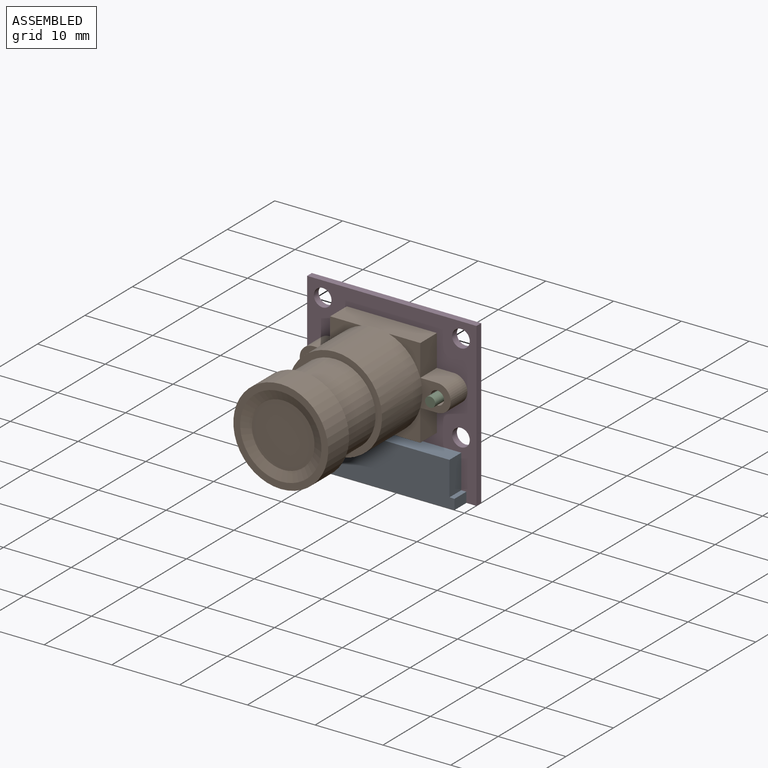
[diagram: assembled view]
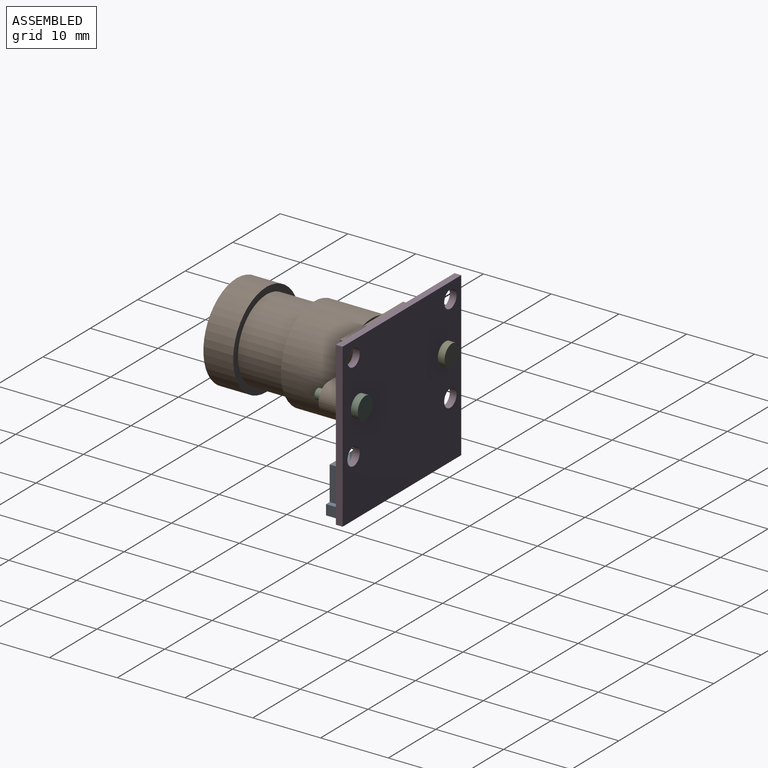
[diagram: assembled view, second angle]
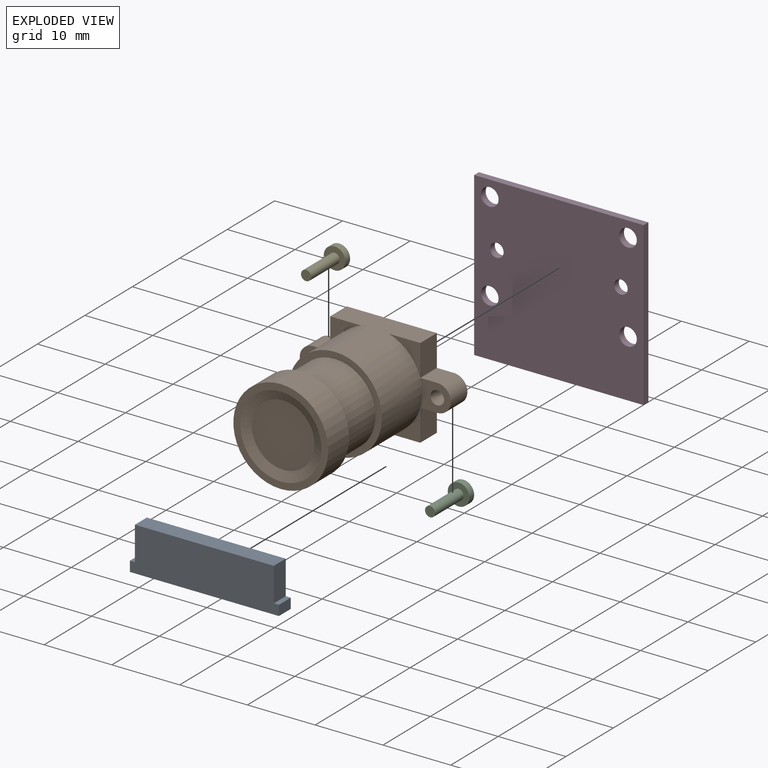
[diagram: exploded view]
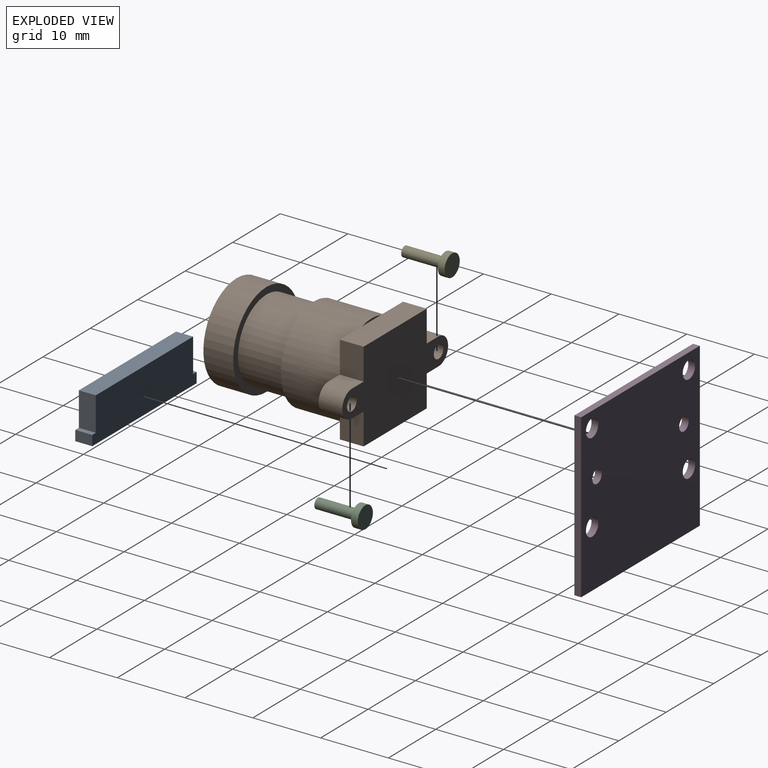
[diagram: exploded view, second angle]
ASSEMBLY  parts=5 mates=5
PART A: 10 faces, bbox 22x2.5x6.5 mm
  f0: plane 2.5x0.75mm, normal (0,0,1), area 1.9mm2, adj f1,f7,f8,f9
  f1: plane 5x2.5mm, normal (1,0,0), area 12.5mm2, adj f0,f2,f8,f9
  f2: plane 20.5x2.5mm, normal (0,0,1), area 51.3mm2, adj f1,f3,f8,f9
  f3: plane 5x2.5mm, normal (-1,0,0), area 12.5mm2, adj f2,f4,f8,f9
  f4: plane 2.5x0.75mm, normal (0,0,1), area 1.9mm2, adj f3,f5,f8,f9
  f5: plane 2.5x1.5mm, normal (-1,0,0), area 3.7mm2, adj f4,f6,f8,f9
  f6: plane 22x2.5mm, normal (0,0,-1), area 55mm2, adj f5,f7,f8,f9
  f7: plane 2.5x1.5mm, normal (1,0,0), area 3.7mm2, adj f0,f6,f8,f9
  f8: plane 22x6.5mm, normal (0,-1,0), area 135.5mm2, adj f0,f1,f2,f3,f4,f5,f6,f7
  f9: plane 22x6.5mm, normal (0,1,0), area 135.5mm2, adj f0,f1,f2,f3,f4,f5,f6,f7
PART B: 35 faces, bbox 22.3x23.4x14 mm
  f0: plane 4.63x4.63mm, normal (0,-1,0), area 7.1mm2, adj f13,f14,f26
  f1: plane 4.49x4mm, normal (0,-1,0), area 12.3mm2, adj f5,f15,f16,f17,f26
  f2: plane 4.63x4.63mm, normal (0,-1,0), area 7.1mm2, adj f6,f7,f26
  f3: plane 4.63x4.63mm, normal (0,-1,0), area 7.1mm2, adj f7,f8,f26
  f4: plane 4.49x4mm, normal (0,-1,0), area 12.3mm2, adj f9,f10,f11,f18,f26
  f5: plane 3.5x2.5mm, normal (0,0,1), area 8.8mm2, adj f1,f6,f17,f20,f22
  f6: plane 4.65x3.5mm, normal (1,0,0), area 16.3mm2, adj f2,f5,f7,f20,f22
  f7: plane 13.3x3.5mm, normal (0,0,1), area 46.5mm2, adj f2,f3,f6,f8,f20,f21
  f8: plane 4.65x3.5mm, normal (-1,0,0), area 16.3mm2, adj f3,f7,f9,f20,f24
  f9: plane 3.5x2.5mm, normal (0,0,1), area 8.8mm2, adj f4,f8,f10,f20,f24
  f10: cylinder r=2mm len=4mm, axis (0,1,0), area 22mm2, adj f4,f9,f11,f20
  f11: plane 3.5x2.5mm, normal (0,0,-1), area 8.8mm2, adj f4,f10,f12,f20,f23
  f12: plane 4.65x3.5mm, normal (-1,0,0), area 16.3mm2, adj f11,f13,f19,f20,f23
  f13: plane 13.3x3.5mm, normal (0,0,-1), area 46.5mm2, adj f0,f12,f14,f19,f20,f28
  f14: plane 4.65x3.5mm, normal (1,0,0), area 16.3mm2, adj f0,f13,f15,f20,f25
  f15: plane 3.5x2.5mm, normal (0,0,-1), area 8.8mm2, adj f1,f14,f17,f20,f25
  f16: cylinder r=1mm len=3.5mm, axis (0,1,0), area 22mm2, adj f1,f20
  f17: cylinder r=2mm len=4mm, axis (0,1,0), area 22mm2, adj f1,f5,f15,f20
  f18: cylinder r=1mm len=3.5mm, axis (0,1,0), area 22mm2, adj f4,f20
  f19: plane 4.63x4.63mm, normal (0,-1,0), area 7.1mm2, adj f12,f13,f26
  f20: plane 22.3x13.3mm, normal (0,1,0), area 203.2mm2, adj f5,f6,f7,f8,f9,f10,f11,f12
  f21: plane 4.04x0.3mm, normal (0,1,0), area 0.8mm2, adj f7,f26
  f22: plane 0.02x0.01mm, normal (0,1,0), area 0mm2, adj f5,f6,f26
  f23: plane 0.02x0.01mm, normal (0,1,0), area 0mm2, adj f11,f12,f26
  f24: plane 0.02x0.01mm, normal (0,1,0), area 0mm2, adj f8,f9,f26
  f25: plane 0.02x0.01mm, normal (0,1,0), area 0mm2, adj f14,f15,f26
  f26: cylinder r=6.95mm len=13.9mm, axis (0,1,0), area 371.2mm2, adj f0,f1,f2,f3,f4,f19,f21,f22
  f27: plane 13.9x13.9mm, normal (0,-1,0), area 38.6mm2, adj f26,f29
  f28: plane 4.04x0.3mm, normal (0,1,0), area 0.8mm2, adj f13,f26
  f29: cylinder r=6mm len=12mm, axis (0,1,0), area 263.9mm2, adj f27,f32
  f30: cylinder r=7mm len=14mm, axis (0,1,0), area 193.5mm2, adj f31,f32
  f31: plane 14x14mm, normal (0,-1,0), area 40.8mm2, adj f30,f33
  f32: plane 14x14mm, normal (0,1,0), area 40.8mm2, adj f29,f30
  f33: cone r=6mm half-angle=70deg, axis (0,-1,0), area 48.8mm2, adj f31,f34
  f34: plane 9.25x9.25mm, normal (0,-1,0), area 67.2mm2, adj f33
PART C: 5 faces, bbox 3.2x7x3.2 mm
  f0: cylinder r=1.6mm len=3.2mm, axis (0,-1,0), area 10.1mm2, adj f1,f2
  f1: plane 3.2x3.2mm, normal (0,1,0), area 8mm2, adj f0
  f2: plane 3.2x3.2mm, normal (0,-1,0), area 6.3mm2, adj f0,f3
  f3: cylinder r=0.75mm len=6mm, axis (0,1,0), area 28.3mm2, adj f2,f4
  f4: plane 1.5x1.5mm, normal (0,-1,0), area 1.8mm2, adj f3
PART D: 12 faces, bbox 25x1x24 mm
  f0: plane 24x1mm, normal (1,0,0), area 24mm2, adj f1,f8,f10,f11
  f1: plane 25x1mm, normal (0,0,1), area 25mm2, adj f0,f2,f10,f11
  f2: plane 24x1mm, normal (-1,0,0), area 24mm2, adj f1,f8,f10,f11
  f3: cylinder r=1mm len=2mm, axis (0,1,0), area 6.3mm2, adj f10,f11
  f4: cylinder r=1.3mm len=2.6mm, axis (0,1,0), area 8.2mm2, adj f10,f11
  f5: cylinder r=1.3mm len=2.6mm, axis (0,1,0), area 8.2mm2, adj f10,f11
  f6: cylinder r=1.3mm len=2.6mm, axis (0,1,0), area 8.2mm2, adj f10,f11
  f7: cylinder r=1.3mm len=2.6mm, axis (0,1,0), area 8.2mm2, adj f10,f11
  f8: plane 25x1mm, normal (0,0,-1), area 25mm2, adj f0,f2,f10,f11
  f9: cylinder r=1mm len=2mm, axis (0,1,0), area 6.3mm2, adj f10,f11
  f10: plane 25x24mm, normal (0,-1,0), area 572.5mm2, adj f0,f1,f2,f3,f4,f5,f6,f7
  f11: plane 25x24mm, normal (0,1,0), area 572.5mm2, adj f0,f1,f2,f3,f4,f5,f6,f7
PART E: same geometry as C
PLACE A at identity
PLACE B at identity
PLACE C at identity
PLACE D at identity fixed
PLACE E t=(-18.3,0,0)mm
MATE fastened E.f0 <-> D.f9  axis (0,-1,0) through (-9.15,0,2.85)mm
MATE fastened D.f3 <-> B.f16  axis (0,-1,0) through (9.15,-1,2.85)mm
MATE fastened C.f0 <-> D.f3  axis (0,-1,0) through (9.15,0,2.85)mm
MATE fastened D.f9 <-> E.f0  axis (0,1,0) through (-9.15,0,2.85)mm
MATE fastened A.f9 <-> D.f10  axis (0,-1,0) through (0,-1,-8)mm
